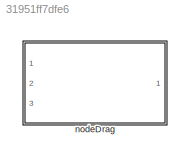
MODEL slx_31951ff7dfe6
KIND library
CONFIG AbsTol = auto
CONFIG EnableMultiTasking = off
CONFIG FixedStep = auto
CONFIG MaxStep = auto
CONFIG MinStep = auto
CONFIG RelTol = 1e-3
CONFIG SampleTimeConstraint = Unconstrained
CONFIG Solver = VariableStepAuto
CONFIG SolverName = VariableStepAuto
CONFIG StartTime = 0.0
CONFIG StopTime = 10.0
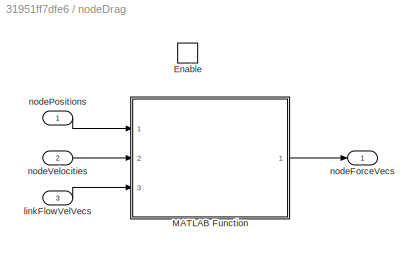
BLOCK [SubSystem] nodeDrag
  Ports = [3, 1, 1]
  RequestExecContextInheritance = off
BLOCK [EnablePort] nodeDrag/Enable
  Ports = []
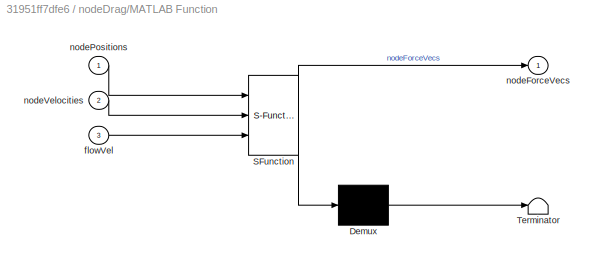
BLOCK [SubSystem] nodeDrag/MATLAB Function
  ErrorFcn = Stateflow.Translate.translate
  PermitHierarchicalResolution = ExplicitOnly
  Ports = [3, 1]
  RequestExecContextInheritance = off
  SFBlockType = MATLAB Function
  TreatAsAtomicUnit = on
BLOCK [Demux] nodeDrag/MATLAB Function/ Demux 
  Outputs = 1
  Ports = [1, 1]
BLOCK [S-Function] nodeDrag/MATLAB Function/ SFunction 
  EnableBusSupport = off
  FunctionName = sf_sfun
  Parameters = dragCoeff,flowDensity,thrDiam
  PortCounts = [3 2]
  Ports = [3, 2]
  SFcnIsStateOwnerBlock = off
  SFunctionDeploymentMode = off
  Tag = Stateflow S-Function nodeDragForce_ul 2
BLOCK [Terminator] nodeDrag/MATLAB Function/ Terminator 
BLOCK [Inport] nodeDrag/MATLAB Function/flowVel
  IconDisplay = Port number
  Port = 3
BLOCK [Outport] nodeDrag/MATLAB Function/nodeForceVecs
  IconDisplay = Port number
BLOCK [Inport] nodeDrag/MATLAB Function/nodePositions
  IconDisplay = Port number
BLOCK [Inport] nodeDrag/MATLAB Function/nodeVelocities
  IconDisplay = Port number
  Port = 2
BLOCK [Inport] nodeDrag/linkFlowVelVecs
  IconDisplay = Port number
  Port = 3
BLOCK [Outport] nodeDrag/nodeForceVecs
  IconDisplay = Port number
BLOCK [Inport] nodeDrag/nodePositions
  IconDisplay = Port number
BLOCK [Inport] nodeDrag/nodeVelocities
  IconDisplay = Port number
  Port = 2
LINE nodeDrag/MATLAB Function:1 -> nodeDrag/nodeForceVecs:1
LINE nodeDrag/linkFlowVelVecs:1 -> nodeDrag/MATLAB Function:3
LINE nodeDrag/nodePositions:1 -> nodeDrag/MATLAB Function:1
LINE nodeDrag/nodeVelocities:1 -> nodeDrag/MATLAB Function:2
CHART nodeDrag/MATLAB Function states=1 transitions=1
  STATE_LABEL 'eML_blk_kernel()'
  STATE_LABEL 'SCRIPT:\nfunction nodeForceVecs = fcn(nodePositions,nodeVelocities,thrDiam, flowDensity, flowVel,dragCoeff)\n% In the notation here, N is the number of nodes, therefore you have N-1\n% links between the nodes.\n\n% Velocity and center of links 3xN-1\nlinkVelocities = (nodeVelocities(:,1:end-1) + nodeVelocities(:,2:end))/2;\n\n% Apparent flow at center of links 3xN-1\nlinkAppFlow = flowVel - linkVelocities;...<+1163ch>'
